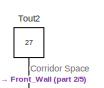
[diagram: root canvas - part 1/5, top center region]
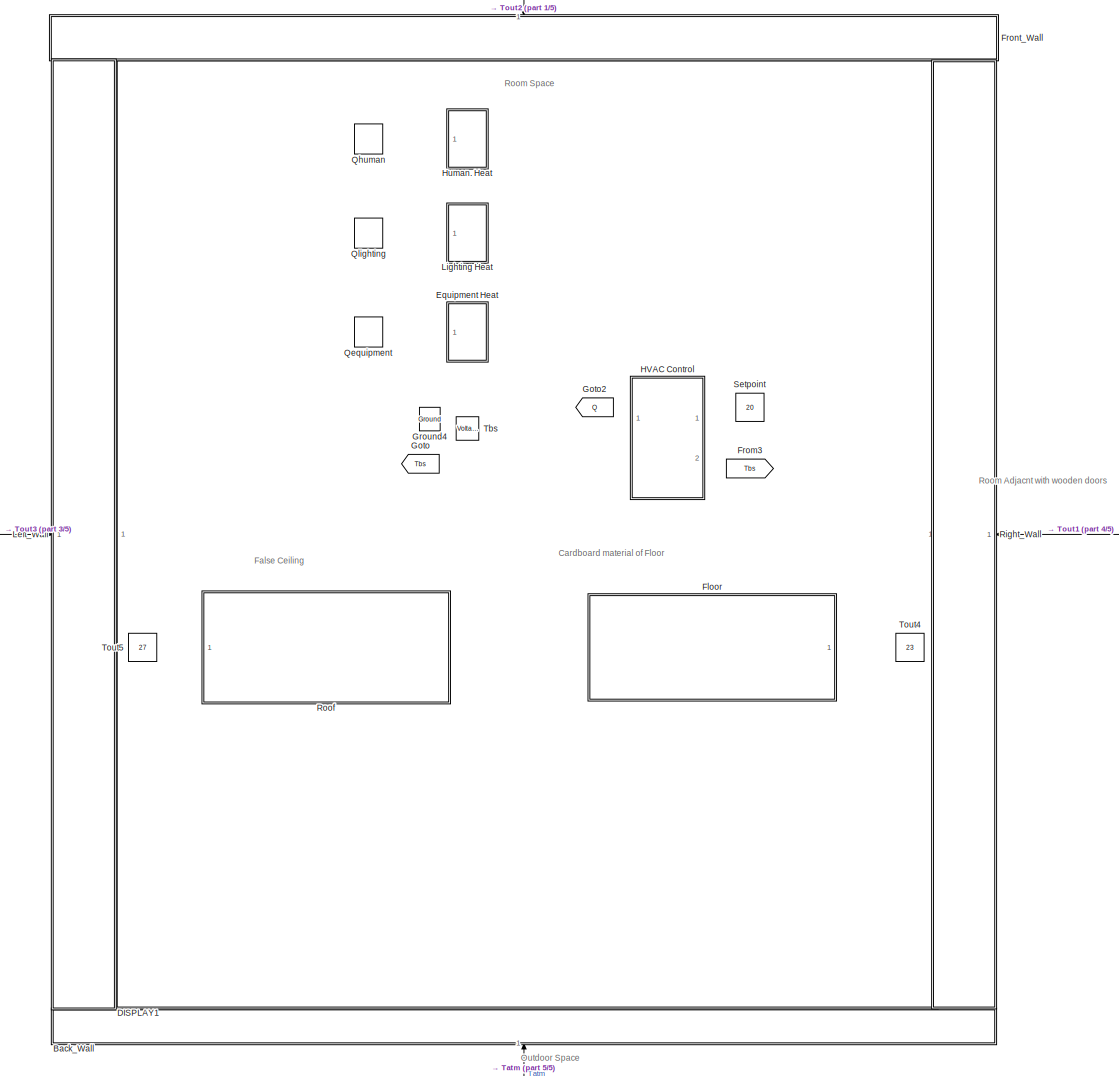
[diagram: root canvas - part 2/5, center side, full height]
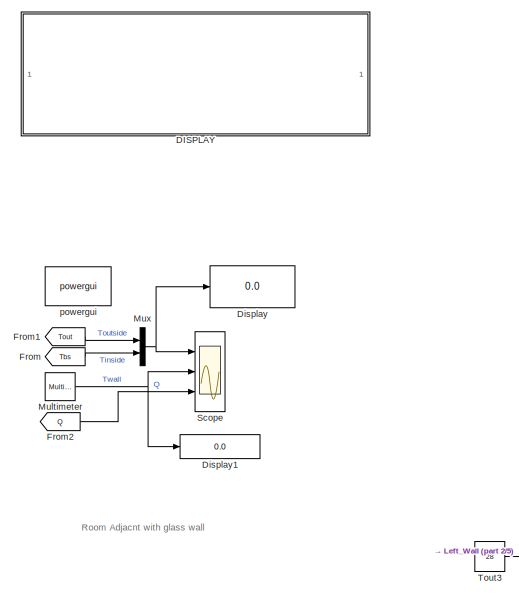
[diagram: root canvas - part 3/5, top left region]
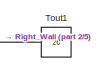
[diagram: root canvas - part 4/5, middle right region]
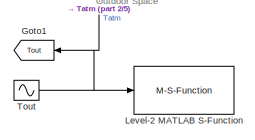
[diagram: root canvas - part 5/5, bottom center region]
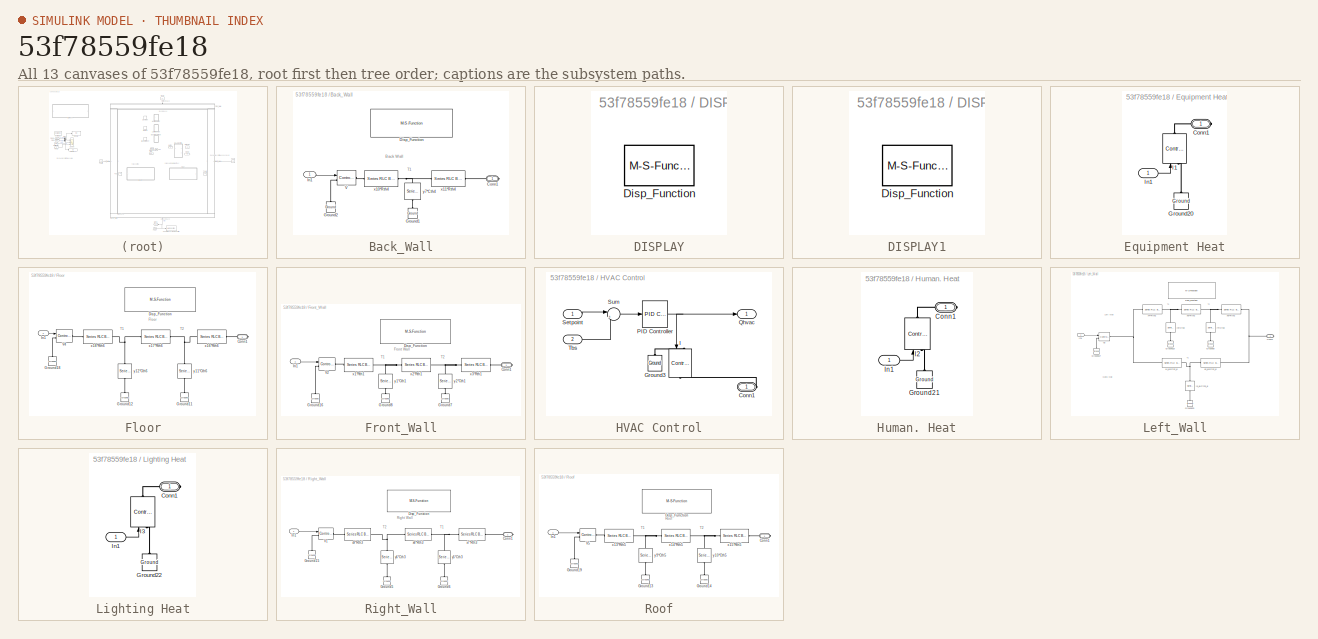
[diagram: thumbnail index - all 13 canvases of the model, root first then tree order]
MODEL slx_53f78559fe18
KIND model
CONFIG AbsTol = auto
CONFIG EnableMultiTasking = on
CONFIG FixedStep = Ts
CONFIG InitFcn = Ts=1.7e-2;\nDuration=36000;\n%% Coefficients of Rs and Cs\n\n%% Front Wall\nl1 = 7.37;\nb1 = 2.63;\ny1 = 0.5;\nx1 = 0.33;\ny2 = 0.5;\nx2 = 0.33;\nx3 = 0.33;\n\n%% Left Wall\nl2 = 10.11;\nb2 = 2.63;\ny3 = 0.5;\nx4 = 0.33;\ny4 = 0.5;\nx5 = 0.33;\nx6 = 0.33;\n\n%% Left Wall Glass\nx4_g = 0.5;\nx5_g = 0.5;\ny3_g = 1;\n\n%% Right Wall\nl3 = 7.37;\nb3 = 2.63;\ny5 = 0.5;\nx7 = 0.33;\ny6 = 0.5;\nx8 = 0.33;\nx9 = 0.33;\n\n%% Back Wall\nl4 = 1...<+3448ch>
CONFIG MaxStep = auto
CONFIG MinStep = auto
CONFIG RelTol = 1e-3
CONFIG SampleTimeConstraint = Unconstrained
CONFIG Solver = ode3
CONFIG SolverName = ode3
CONFIG StartTime = 0.0
CONFIG StopTime = inf
BLOCK [SubSystem] Back_Wall
  Ports = [1, 0, 0, 0, 0, 0, 1]
  RequestExecContextInheritance = off
BLOCK [PMIOPort] Back_Wall/Conn1
  Side = Right
BLOCK [M-S-Function] Back_Wall/Disp_Function
  FunctionName = fn_Display_wall
  Ports = []
BLOCK [Reference] Back_Wall/Ground1  REF=powerlib/Elements/Ground
  Ports = [0, 0, 0, 0, 0, 1]
  SourceBlock = powerlib/Elements/Ground
  SourceProductBaseCode = PS
  SourceProductName = Simscape Power Systems
  SourceType = Ground
BLOCK [Reference] Back_Wall/Ground2  REF=powerlib/Elements/Ground
  Ports = [0, 0, 0, 0, 0, 1]
  SourceBlock = powerlib/Elements/Ground
  SourceProductBaseCode = PS
  SourceProductName = Simscape Power Systems
  SourceType = Ground
BLOCK [Inport] Back_Wall/In1
  IconDisplay = Port number
BLOCK [Reference] Back_Wall/V  REF=powerlib/Electrical
Sources/Controlled Voltage Source
  Ports = [1, 0, 0, 0, 0, 1, 1]
  SourceBlock = powerlib/Electrical\nSources/Controlled Voltage Source
  SourceProductBaseCode = PS
  SourceProductName = Simscape Power Systems
  SourceType = Controlled Voltage Source
BLOCK [Reference] Back_Wall/x10*Rth4  REF=powerlib/Elements/Series RLC Branch
  Ports = [0, 0, 0, 0, 0, 1, 1]
  SourceBlock = powerlib/Elements/Series RLC Branch
  SourceProductBaseCode = PS
  SourceProductName = Simscape Power Systems
  SourceType = Series RLC Branch
BLOCK [Reference] Back_Wall/x11*Rth4  REF=powerlib/Elements/Series RLC Branch
  Ports = [0, 0, 0, 0, 0, 1, 1]
  SourceBlock = powerlib/Elements/Series RLC Branch
  SourceProductBaseCode = PS
  SourceProductName = Simscape Power Systems
  SourceType = Series RLC Branch
BLOCK [Reference] Back_Wall/y7*Cth4  REF=powerlib/Elements/Series RLC Branch
  Ports = [0, 0, 0, 0, 0, 1, 1]
  SourceBlock = powerlib/Elements/Series RLC Branch
  SourceProductBaseCode = PS
  SourceProductName = Simscape Power Systems
  SourceType = Series RLC Branch
BLOCK [SubSystem] DISPLAY
  AttributesFormatString = 39.76
  Ports = []
  RequestExecContextInheritance = off
BLOCK [M-S-Function] DISPLAY/Disp_Function
  FunctionName = fn_Display
  Ports = []
BLOCK [SubSystem] DISPLAY1
  AttributesFormatString = 35.01
  Ports = []
  RequestExecContextInheritance = off
BLOCK [M-S-Function] DISPLAY1/Disp_Function
  FunctionName = fn_Display_Room
  Ports = []
BLOCK [Display] Display
  Decimation = 1
  Ports = [1]
BLOCK [Display] Display1
  Decimation = 1
  Ports = [1]
BLOCK [SubSystem] Equipment Heat
  Ports = [1, 0, 0, 0, 0, 0, 1]
  RequestExecContextInheritance = off
  ShowPortLabels = none
BLOCK [PMIOPort] Equipment Heat/Conn1
  Side = Right
BLOCK [Reference] Equipment Heat/Ground20  REF=powerlib/Elements/Ground
  Ports = [0, 0, 0, 0, 0, 1]
  SourceBlock = powerlib/Elements/Ground
  SourceProductBaseCode = PS
  SourceProductName = Simscape Power Systems
  SourceType = Ground
BLOCK [Reference] Equipment Heat/I1  REF=powerlib/Electrical
Sources/Controlled Current Source
  Ports = [1, 0, 0, 0, 0, 1, 1]
  SourceBlock = powerlib/Electrical\nSources/Controlled Current Source
  SourceProductBaseCode = PS
  SourceProductName = Simscape Power Systems
  SourceType = Controlled Current Source
BLOCK [Inport] Equipment Heat/In1
  IconDisplay = Port number
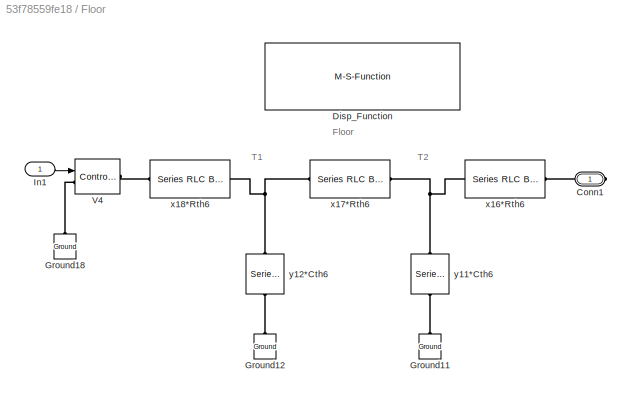
BLOCK [SubSystem] Floor
  Ports = [1, 0, 0, 0, 0, 0, 1]
  RequestExecContextInheritance = off
BLOCK [PMIOPort] Floor/Conn1
  Side = Right
BLOCK [M-S-Function] Floor/Disp_Function
  FunctionName = fn_Display_wall
  Ports = []
BLOCK [Reference] Floor/Ground11  REF=powerlib/Elements/Ground
  Ports = [0, 0, 0, 0, 0, 1]
  SourceBlock = powerlib/Elements/Ground
  SourceProductBaseCode = PS
  SourceProductName = Simscape Power Systems
  SourceType = Ground
BLOCK [Reference] Floor/Ground12  REF=powerlib/Elements/Ground
  Ports = [0, 0, 0, 0, 0, 1]
  SourceBlock = powerlib/Elements/Ground
  SourceProductBaseCode = PS
  SourceProductName = Simscape Power Systems
  SourceType = Ground
BLOCK [Reference] Floor/Ground18  REF=powerlib/Elements/Ground
  Ports = [0, 0, 0, 0, 0, 1]
  SourceBlock = powerlib/Elements/Ground
  SourceProductBaseCode = PS
  SourceProductName = Simscape Power Systems
  SourceType = Ground
BLOCK [Inport] Floor/In1
  IconDisplay = Port number
BLOCK [Reference] Floor/V4  REF=powerlib/Electrical
Sources/Controlled Voltage Source
  Ports = [1, 0, 0, 0, 0, 1, 1]
  SourceBlock = powerlib/Electrical\nSources/Controlled Voltage Source
  SourceProductBaseCode = PS
  SourceProductName = Simscape Power Systems
  SourceType = Controlled Voltage Source
BLOCK [Reference] Floor/x16*Rth6  REF=powerlib/Elements/Series RLC Branch
  Ports = [0, 0, 0, 0, 0, 1, 1]
  SourceBlock = powerlib/Elements/Series RLC Branch
  SourceProductBaseCode = PS
  SourceProductName = Simscape Power Systems
  SourceType = Series RLC Branch
BLOCK [Reference] Floor/x17*Rth6  REF=powerlib/Elements/Series RLC Branch
  Ports = [0, 0, 0, 0, 0, 1, 1]
  SourceBlock = powerlib/Elements/Series RLC Branch
  SourceProductBaseCode = PS
  SourceProductName = Simscape Power Systems
  SourceType = Series RLC Branch
BLOCK [Reference] Floor/x18*Rth6  REF=powerlib/Elements/Series RLC Branch
  Ports = [0, 0, 0, 0, 0, 1, 1]
  SourceBlock = powerlib/Elements/Series RLC Branch
  SourceProductBaseCode = PS
  SourceProductName = Simscape Power Systems
  SourceType = Series RLC Branch
BLOCK [Reference] Floor/y11*Cth6  REF=powerlib/Elements/Series RLC Branch
  Ports = [0, 0, 0, 0, 0, 1, 1]
  SourceBlock = powerlib/Elements/Series RLC Branch
  SourceProductBaseCode = PS
  SourceProductName = Simscape Power Systems
  SourceType = Series RLC Branch
BLOCK [Reference] Floor/y12*Cth6  REF=powerlib/Elements/Series RLC Branch
  Ports = [0, 0, 0, 0, 0, 1, 1]
  SourceBlock = powerlib/Elements/Series RLC Branch
  SourceProductBaseCode = PS
  SourceProductName = Simscape Power Systems
  SourceType = Series RLC Branch
BLOCK [From] From
  GotoTag = Tbs
BLOCK [From] From1
  GotoTag = Tout
BLOCK [From] From2
  GotoTag = Q
BLOCK [From] From3
  GotoTag = Tbs
BLOCK [SubSystem] Front_Wall
  Ports = [1, 0, 0, 0, 0, 0, 1]
  RequestExecContextInheritance = off
BLOCK [PMIOPort] Front_Wall/Conn1
  Side = Right
BLOCK [M-S-Function] Front_Wall/Disp_Function
  FunctionName = fn_Display_wall
  Ports = []
BLOCK [Reference] Front_Wall/Ground16  REF=powerlib/Elements/Ground
  Ports = [0, 0, 0, 0, 0, 1]
  SourceBlock = powerlib/Elements/Ground
  SourceProductBaseCode = PS
  SourceProductName = Simscape Power Systems
  SourceType = Ground
BLOCK [Reference] Front_Wall/Ground7  REF=powerlib/Elements/Ground
  Ports = [0, 0, 0, 0, 0, 1]
  SourceBlock = powerlib/Elements/Ground
  SourceProductBaseCode = PS
  SourceProductName = Simscape Power Systems
  SourceType = Ground
BLOCK [Reference] Front_Wall/Ground8  REF=powerlib/Elements/Ground
  Ports = [0, 0, 0, 0, 0, 1]
  SourceBlock = powerlib/Elements/Ground
  SourceProductBaseCode = PS
  SourceProductName = Simscape Power Systems
  SourceType = Ground
BLOCK [Inport] Front_Wall/In1
  IconDisplay = Port number
BLOCK [Reference] Front_Wall/V2  REF=powerlib/Electrical
Sources/Controlled Voltage Source
  Ports = [1, 0, 0, 0, 0, 1, 1]
  SourceBlock = powerlib/Electrical\nSources/Controlled Voltage Source
  SourceProductBaseCode = PS
  SourceProductName = Simscape Power Systems
  SourceType = Controlled Voltage Source
BLOCK [Reference] Front_Wall/x1*Rth1  REF=powerlib/Elements/Series RLC Branch
  Ports = [0, 0, 0, 0, 0, 1, 1]
  SourceBlock = powerlib/Elements/Series RLC Branch
  SourceProductBaseCode = PS
  SourceProductName = Simscape Power Systems
  SourceType = Series RLC Branch
BLOCK [Reference] Front_Wall/x2*Rth1  REF=powerlib/Elements/Series RLC Branch
  Ports = [0, 0, 0, 0, 0, 1, 1]
  SourceBlock = powerlib/Elements/Series RLC Branch
  SourceProductBaseCode = PS
  SourceProductName = Simscape Power Systems
  SourceType = Series RLC Branch
BLOCK [Reference] Front_Wall/x3*Rth1  REF=powerlib/Elements/Series RLC Branch
  Ports = [0, 0, 0, 0, 0, 1, 1]
  SourceBlock = powerlib/Elements/Series RLC Branch
  SourceProductBaseCode = PS
  SourceProductName = Simscape Power Systems
  SourceType = Series RLC Branch
BLOCK [Reference] Front_Wall/y1*Cth1  REF=powerlib/Elements/Series RLC Branch
  Ports = [0, 0, 0, 0, 0, 1, 1]
  SourceBlock = powerlib/Elements/Series RLC Branch
  SourceProductBaseCode = PS
  SourceProductName = Simscape Power Systems
  SourceType = Series RLC Branch
BLOCK [Reference] Front_Wall/y2*Cth1  REF=powerlib/Elements/Series RLC Branch
  Ports = [0, 0, 0, 0, 0, 1, 1]
  SourceBlock = powerlib/Elements/Series RLC Branch
  SourceProductBaseCode = PS
  SourceProductName = Simscape Power Systems
  SourceType = Series RLC Branch
BLOCK [Goto] Goto
  GotoTag = Tbs
BLOCK [Goto] Goto1
  GotoTag = Tout
BLOCK [Goto] Goto2
  GotoTag = Q
BLOCK [Reference] Ground4  REF=powerlib/Elements/Ground
  Ports = [0, 0, 0, 0, 0, 1]
  SourceBlock = powerlib/Elements/Ground
  SourceProductBaseCode = PS
  SourceProductName = Simscape Power Systems
  SourceType = Ground
BLOCK [SubSystem] HVAC Control
  Ports = [2, 1, 0, 0, 0, 0, 1]
  RequestExecContextInheritance = off
BLOCK [PMIOPort] HVAC Control/Conn1
  Side = Right
BLOCK [Reference] HVAC Control/Ground3  REF=powerlib/Elements/Ground
  Ports = [0, 0, 0, 0, 0, 1]
  SourceBlock = powerlib/Elements/Ground
  SourceProductBaseCode = PS
  SourceProductName = Simscape Power Systems
  SourceType = Ground
BLOCK [Reference] HVAC Control/I  REF=powerlib/Electrical
Sources/Controlled Current Source
  Ports = [1, 0, 0, 0, 0, 1, 1]
  SourceBlock = powerlib/Electrical\nSources/Controlled Current Source
  SourceProductBaseCode = PS
  SourceProductName = Simscape Power Systems
  SourceType = Controlled Current Source
BLOCK [Reference] HVAC Control/PID Controller  REF=simulink/Continuous/PID Controller
  Ports = [1, 1]
  SourceBlock = simulink/Continuous/PID Controller
  SourceProductBaseCode = SL
  SourceProductName = Simulink
  SourceType = PID 1dof
BLOCK [Outport] HVAC Control/Qhvac
  IconDisplay = Port number
BLOCK [Inport] HVAC Control/Setpoint
  IconDisplay = Port number
BLOCK [Sum] HVAC Control/Sum
  IconShape = round
  InputSameDT = off
  Inputs = |+-
  OutDataTypeStr = Inherit: Inherit via internal rule
  Ports = [2, 1]
  SaturateOnIntegerOverflow = off
BLOCK [Inport] HVAC Control/Tbs
  IconDisplay = Port number
  Port = 2
BLOCK [SubSystem] Human. Heat
  Ports = [1, 0, 0, 0, 0, 0, 1]
  RequestExecContextInheritance = off
  ShowPortLabels = none
BLOCK [PMIOPort] Human. Heat/Conn1
  Side = Right
BLOCK [Reference] Human. Heat/Ground21  REF=powerlib/Elements/Ground
  Ports = [0, 0, 0, 0, 0, 1]
  SourceBlock = powerlib/Elements/Ground
  SourceProductBaseCode = PS
  SourceProductName = Simscape Power Systems
  SourceType = Ground
BLOCK [Reference] Human. Heat/I2  REF=powerlib/Electrical
Sources/Controlled Current Source
  Ports = [1, 0, 0, 0, 0, 1, 1]
  SourceBlock = powerlib/Electrical\nSources/Controlled Current Source
  SourceProductBaseCode = PS
  SourceProductName = Simscape Power Systems
  SourceType = Controlled Current Source
BLOCK [Inport] Human. Heat/In1
  IconDisplay = Port number
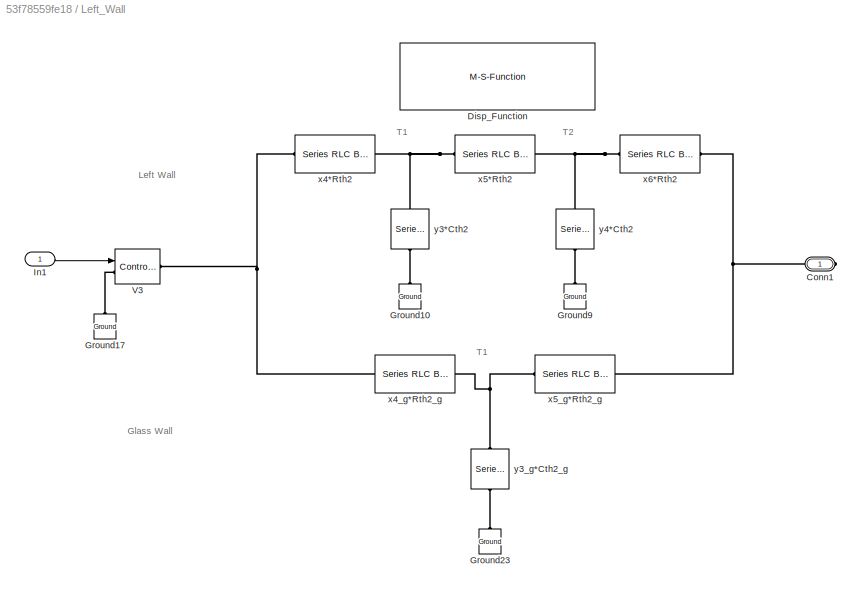
BLOCK [SubSystem] Left_Wall
  Ports = [1, 0, 0, 0, 0, 0, 1]
  RequestExecContextInheritance = off
BLOCK [PMIOPort] Left_Wall/Conn1
  Side = Right
BLOCK [M-S-Function] Left_Wall/Disp_Function
  FunctionName = fn_Display_wall
  Ports = []
BLOCK [Reference] Left_Wall/Ground10  REF=powerlib/Elements/Ground
  Ports = [0, 0, 0, 0, 0, 1]
  SourceBlock = powerlib/Elements/Ground
  SourceProductBaseCode = PS
  SourceProductName = Simscape Power Systems
  SourceType = Ground
BLOCK [Reference] Left_Wall/Ground17  REF=powerlib/Elements/Ground
  Ports = [0, 0, 0, 0, 0, 1]
  SourceBlock = powerlib/Elements/Ground
  SourceProductBaseCode = PS
  SourceProductName = Simscape Power Systems
  SourceType = Ground
BLOCK [Reference] Left_Wall/Ground23  REF=powerlib/Elements/Ground
  Ports = [0, 0, 0, 0, 0, 1]
  SourceBlock = powerlib/Elements/Ground
  SourceProductBaseCode = PS
  SourceProductName = Simscape Power Systems
  SourceType = Ground
BLOCK [Reference] Left_Wall/Ground9  REF=powerlib/Elements/Ground
  Ports = [0, 0, 0, 0, 0, 1]
  SourceBlock = powerlib/Elements/Ground
  SourceProductBaseCode = PS
  SourceProductName = Simscape Power Systems
  SourceType = Ground
BLOCK [Inport] Left_Wall/In1
  IconDisplay = Port number
BLOCK [Reference] Left_Wall/V3  REF=powerlib/Electrical
Sources/Controlled Voltage Source
  Ports = [1, 0, 0, 0, 0, 1, 1]
  SourceBlock = powerlib/Electrical\nSources/Controlled Voltage Source
  SourceProductBaseCode = PS
  SourceProductName = Simscape Power Systems
  SourceType = Controlled Voltage Source
BLOCK [Reference] Left_Wall/x4*Rth2  REF=powerlib/Elements/Series RLC Branch
  Ports = [0, 0, 0, 0, 0, 1, 1]
  SourceBlock = powerlib/Elements/Series RLC Branch
  SourceProductBaseCode = PS
  SourceProductName = Simscape Power Systems
  SourceType = Series RLC Branch
BLOCK [Reference] Left_Wall/x4_g*Rth2_g  REF=powerlib/Elements/Series RLC Branch
  Ports = [0, 0, 0, 0, 0, 1, 1]
  SourceBlock = powerlib/Elements/Series RLC Branch
  SourceProductBaseCode = PS
  SourceProductName = Simscape Power Systems
  SourceType = Series RLC Branch
BLOCK [Reference] Left_Wall/x5*Rth2  REF=powerlib/Elements/Series RLC Branch
  Ports = [0, 0, 0, 0, 0, 1, 1]
  SourceBlock = powerlib/Elements/Series RLC Branch
  SourceProductBaseCode = PS
  SourceProductName = Simscape Power Systems
  SourceType = Series RLC Branch
BLOCK [Reference] Left_Wall/x5_g*Rth2_g  REF=powerlib/Elements/Series RLC Branch
  Ports = [0, 0, 0, 0, 0, 1, 1]
  SourceBlock = powerlib/Elements/Series RLC Branch
  SourceProductBaseCode = PS
  SourceProductName = Simscape Power Systems
  SourceType = Series RLC Branch
BLOCK [Reference] Left_Wall/x6*Rth2  REF=powerlib/Elements/Series RLC Branch
  Ports = [0, 0, 0, 0, 0, 1, 1]
  SourceBlock = powerlib/Elements/Series RLC Branch
  SourceProductBaseCode = PS
  SourceProductName = Simscape Power Systems
  SourceType = Series RLC Branch
BLOCK [Reference] Left_Wall/y3*Cth2  REF=powerlib/Elements/Series RLC Branch
  Ports = [0, 0, 0, 0, 0, 1, 1]
  SourceBlock = powerlib/Elements/Series RLC Branch
  SourceProductBaseCode = PS
  SourceProductName = Simscape Power Systems
  SourceType = Series RLC Branch
BLOCK [Reference] Left_Wall/y3_g*Cth2_g  REF=powerlib/Elements/Series RLC Branch
  Ports = [0, 0, 0, 0, 0, 1, 1]
  SourceBlock = powerlib/Elements/Series RLC Branch
  SourceProductBaseCode = PS
  SourceProductName = Simscape Power Systems
  SourceType = Series RLC Branch
BLOCK [Reference] Left_Wall/y4*Cth2  REF=powerlib/Elements/Series RLC Branch
  Ports = [0, 0, 0, 0, 0, 1, 1]
  SourceBlock = powerlib/Elements/Series RLC Branch
  SourceProductBaseCode = PS
  SourceProductName = Simscape Power Systems
  SourceType = Series RLC Branch
BLOCK [M-S-Function] Level-2 MATLAB S-Function
  FunctionName = Display_Param
  Ports = [1]
BLOCK [SubSystem] Lighting Heat
  Ports = [1, 0, 0, 0, 0, 0, 1]
  RequestExecContextInheritance = off
  ShowPortLabels = none
BLOCK [PMIOPort] Lighting Heat/Conn1
  Side = Right
BLOCK [Reference] Lighting Heat/Ground22  REF=powerlib/Elements/Ground
  Ports = [0, 0, 0, 0, 0, 1]
  SourceBlock = powerlib/Elements/Ground
  SourceProductBaseCode = PS
  SourceProductName = Simscape Power Systems
  SourceType = Ground
BLOCK [Reference] Lighting Heat/I3  REF=powerlib/Electrical
Sources/Controlled Current Source
  Ports = [1, 0, 0, 0, 0, 1, 1]
  SourceBlock = powerlib/Electrical\nSources/Controlled Current Source
  SourceProductBaseCode = PS
  SourceProductName = Simscape Power Systems
  SourceType = Controlled Current Source
BLOCK [Inport] Lighting Heat/In1
  IconDisplay = Port number
BLOCK [Reference] Multimeter  REF=powerlib/Measurements/Multimeter
  Ports = [0, 1]
  SourceBlock = powerlib/Measurements/Multimeter
  SourceProductBaseCode = PS
  SourceProductName = Simscape Power Systems
  SourceType = MultimeterPSB
BLOCK [Mux] Mux
  DisplayOption = bar
  Inputs = 2
  Ports = [2, 1]
BLOCK [DiscretePulseGenerator] Qequipment
  Amplitude = 4000
  Period = 1e8
  Ports = [0, 1]
  PulseType = Time based
  PulseWidth = 50
BLOCK [DiscretePulseGenerator] Qhuman
  Amplitude = 1500
  Period = 1e8
  Ports = [0, 1]
  PulseType = Time based
  PulseWidth = 50
BLOCK [DiscretePulseGenerator] Qlighting
  Amplitude = 2000
  Period = 1e8
  Ports = [0, 1]
  PulseType = Time based
  PulseWidth = 80
BLOCK [SubSystem] Right_Wall
  Ports = [1, 0, 0, 0, 0, 0, 1]
  RequestExecContextInheritance = off
BLOCK [PMIOPort] Right_Wall/Conn1
  Side = Right
BLOCK [M-S-Function] Right_Wall/Disp_Function
  FunctionName = fn_Display_wall
  Ports = []
BLOCK [Reference] Right_Wall/Ground15  REF=powerlib/Elements/Ground
  Ports = [0, 0, 0, 0, 0, 1]
  SourceBlock = powerlib/Elements/Ground
  SourceProductBaseCode = PS
  SourceProductName = Simscape Power Systems
  SourceType = Ground
BLOCK [Reference] Right_Wall/Ground5  REF=powerlib/Elements/Ground
  Ports = [0, 0, 0, 0, 0, 1]
  SourceBlock = powerlib/Elements/Ground
  SourceProductBaseCode = PS
  SourceProductName = Simscape Power Systems
  SourceType = Ground
BLOCK [Reference] Right_Wall/Ground6  REF=powerlib/Elements/Ground
  Ports = [0, 0, 0, 0, 0, 1]
  SourceBlock = powerlib/Elements/Ground
  SourceProductBaseCode = PS
  SourceProductName = Simscape Power Systems
  SourceType = Ground
BLOCK [Inport] Right_Wall/In1
  IconDisplay = Port number
BLOCK [Reference] Right_Wall/V1  REF=powerlib/Electrical
Sources/Controlled Voltage Source
  Ports = [1, 0, 0, 0, 0, 1, 1]
  SourceBlock = powerlib/Electrical\nSources/Controlled Voltage Source
  SourceProductBaseCode = PS
  SourceProductName = Simscape Power Systems
  SourceType = Controlled Voltage Source
BLOCK [Reference] Right_Wall/x7*Rth3  REF=powerlib/Elements/Series RLC Branch
  Ports = [0, 0, 0, 0, 0, 1, 1]
  SourceBlock = powerlib/Elements/Series RLC Branch
  SourceProductBaseCode = PS
  SourceProductName = Simscape Power Systems
  SourceType = Series RLC Branch
BLOCK [Reference] Right_Wall/x8*Rth3  REF=powerlib/Elements/Series RLC Branch
  Ports = [0, 0, 0, 0, 0, 1, 1]
  SourceBlock = powerlib/Elements/Series RLC Branch
  SourceProductBaseCode = PS
  SourceProductName = Simscape Power Systems
  SourceType = Series RLC Branch
BLOCK [Reference] Right_Wall/x9*Rth3  REF=powerlib/Elements/Series RLC Branch
  Ports = [0, 0, 0, 0, 0, 1, 1]
  SourceBlock = powerlib/Elements/Series RLC Branch
  SourceProductBaseCode = PS
  SourceProductName = Simscape Power Systems
  SourceType = Series RLC Branch
BLOCK [Reference] Right_Wall/y5*Cth3  REF=powerlib/Elements/Series RLC Branch
  Ports = [0, 0, 0, 0, 0, 1, 1]
  SourceBlock = powerlib/Elements/Series RLC Branch
  SourceProductBaseCode = PS
  SourceProductName = Simscape Power Systems
  SourceType = Series RLC Branch
BLOCK [Reference] Right_Wall/y6*Cth3  REF=powerlib/Elements/Series RLC Branch
  Ports = [0, 0, 0, 0, 0, 1, 1]
  SourceBlock = powerlib/Elements/Series RLC Branch
  SourceProductBaseCode = PS
  SourceProductName = Simscape Power Systems
  SourceType = Series RLC Branch
BLOCK [SubSystem] Roof
  Ports = [1, 0, 0, 0, 0, 0, 1]
  RequestExecContextInheritance = off
BLOCK [PMIOPort] Roof/Conn1
  Side = Right
BLOCK [M-S-Function] Roof/Disp_Function
  FunctionName = fn_Display_wall
  Ports = []
BLOCK [Reference] Roof/Ground13  REF=powerlib/Elements/Ground
  Ports = [0, 0, 0, 0, 0, 1]
  SourceBlock = powerlib/Elements/Ground
  SourceProductBaseCode = PS
  SourceProductName = Simscape Power Systems
  SourceType = Ground
BLOCK [Reference] Roof/Ground14  REF=powerlib/Elements/Ground
  Ports = [0, 0, 0, 0, 0, 1]
  SourceBlock = powerlib/Elements/Ground
  SourceProductBaseCode = PS
  SourceProductName = Simscape Power Systems
  SourceType = Ground
BLOCK [Reference] Roof/Ground19  REF=powerlib/Elements/Ground
  Ports = [0, 0, 0, 0, 0, 1]
  SourceBlock = powerlib/Elements/Ground
  SourceProductBaseCode = PS
  SourceProductName = Simscape Power Systems
  SourceType = Ground
BLOCK [Inport] Roof/In1
  IconDisplay = Port number
BLOCK [Reference] Roof/V5  REF=powerlib/Electrical
Sources/Controlled Voltage Source
  Ports = [1, 0, 0, 0, 0, 1, 1]
  SourceBlock = powerlib/Electrical\nSources/Controlled Voltage Source
  SourceProductBaseCode = PS
  SourceProductName = Simscape Power Systems
  SourceType = Controlled Voltage Source
BLOCK [Reference] Roof/x13*Rth5  REF=powerlib/Elements/Series RLC Branch
  Ports = [0, 0, 0, 0, 0, 1, 1]
  SourceBlock = powerlib/Elements/Series RLC Branch
  SourceProductBaseCode = PS
  SourceProductName = Simscape Power Systems
  SourceType = Series RLC Branch
BLOCK [Reference] Roof/x14*Rth5  REF=powerlib/Elements/Series RLC Branch
  Ports = [0, 0, 0, 0, 0, 1, 1]
  SourceBlock = powerlib/Elements/Series RLC Branch
  SourceProductBaseCode = PS
  SourceProductName = Simscape Power Systems
  SourceType = Series RLC Branch
BLOCK [Reference] Roof/x15*Rth5  REF=powerlib/Elements/Series RLC Branch
  Ports = [0, 0, 0, 0, 0, 1, 1]
  SourceBlock = powerlib/Elements/Series RLC Branch
  SourceProductBaseCode = PS
  SourceProductName = Simscape Power Systems
  SourceType = Series RLC Branch
BLOCK [Reference] Roof/y10*Cth5  REF=powerlib/Elements/Series RLC Branch
  Ports = [0, 0, 0, 0, 0, 1, 1]
  SourceBlock = powerlib/Elements/Series RLC Branch
  SourceProductBaseCode = PS
  SourceProductName = Simscape Power Systems
  SourceType = Series RLC Branch
BLOCK [Reference] Roof/y9*Cth5  REF=powerlib/Elements/Series RLC Branch
  Ports = [0, 0, 0, 0, 0, 1, 1]
  SourceBlock = powerlib/Elements/Series RLC Branch
  SourceProductBaseCode = PS
  SourceProductName = Simscape Power Systems
  SourceType = Series RLC Branch
BLOCK [Scope] Scope
  Floating = off
  NumInputPorts = 3
  Ports = [3]
  ScopeSpecificationString = Simulink.scopes.TimeScopeBlockCfg('CurrentConfiguration', extmgr.ConfigurationSet(extmgr.Configuration('Core','General UI',true,'FigureColor',[1 1 1]),extmgr.Configuration('Core','Source UI',true),extmgr.Configuration('Sources','WiredSimulink',true,'DataLoggingSaveFormat','Array','DataLoggingDecimation','1','DataLoggingDecimateData',true),extmgr.Configuration('Visuals','Time Domain',true,'Serializ...<+5531ch>
BLOCK [Constant] Setpoint
  Value = 20
BLOCK [Reference] Tbs  REF=powerlib/Measurements/Voltage Measurement
  Ports = [0, 1, 0, 0, 0, 2]
  SourceBlock = powerlib/Measurements/Voltage Measurement
  SourceProductBaseCode = PS
  SourceProductName = Simscape Power Systems
  SourceType = Voltage Measurement
  UserDataPersistent = on
BLOCK [Sin] Tout
  Amplitude = 25
  Bias = 5
  Frequency = 2*pi/(12*3600)
  Ports = [0, 1]
  SampleTime = 0
BLOCK [Constant] Tout1
  Value = 26
BLOCK [Constant] Tout2
  Value = 27
BLOCK [Constant] Tout3
  Value = 28
BLOCK [Constant] Tout4
  Value = 23
BLOCK [Constant] Tout5
  Value = 27
BLOCK [Reference] powergui  REF=powerlib/powergui
  Ports = []
  Priority = 1
  SourceBlock = powerlib/powergui
  SourceProductBaseCode = PS
  SourceProductName = Simscape Power Systems
  SourceType = PSB option menu block
ANNOTATION (root): Room Space
ANNOTATION (root): Cardboard material of Floor
ANNOTATION (root): Corridor Space
ANNOTATION (root): False Ceiling
ANNOTATION (root): Outdoor Space
ANNOTATION (root): Room Adjacnt with glass wall
ANNOTATION (root): Room Adjacnt with wooden doors
ANNOTATION Back_Wall: Back Wall
ANNOTATION Back_Wall: T1
ANNOTATION Floor: Floor
ANNOTATION Floor: T1
ANNOTATION Floor: T2
ANNOTATION Front_Wall: Front Wall
ANNOTATION Front_Wall: T1
ANNOTATION Front_Wall: T2
ANNOTATION Left_Wall: Glass Wall
ANNOTATION Left_Wall: Left Wall
ANNOTATION Left_Wall: T1
ANNOTATION Left_Wall: T2
ANNOTATION Right_Wall: Right Wall
ANNOTATION Right_Wall: T1
ANNOTATION Right_Wall: T2
ANNOTATION Roof: Roof
ANNOTATION Roof: T1
ANNOTATION Roof: T2
LINE Back_Wall/In1:1 -> Back_Wall/V:1
LINE Equipment Heat/In1:1 -> Equipment Heat/I1:1
LINE Floor/In1:1 -> Floor/V4:1
LINE From1:1 -> Mux:1
LINE From2:1 -> Scope:3
LINE From3:1 -> HVAC Control:2
LINE From:1 -> Mux:2
LINE Front_Wall/In1:1 -> Front_Wall/V2:1
NET HVAC Control/PID Controller:1 -> HVAC Control/I:1, HVAC Control/Qhvac:1
LINE HVAC Control/Setpoint:1 -> HVAC Control/Sum:1
LINE HVAC Control/Sum:1 -> HVAC Control/PID Controller:1
LINE HVAC Control/Tbs:1 -> HVAC Control/Sum:2
LINE HVAC Control:1 -> Goto2:1
LINE Human. Heat/In1:1 -> Human. Heat/I2:1
LINE Left_Wall/In1:1 -> Left_Wall/V3:1
LINE Lighting Heat/In1:1 -> Lighting Heat/I3:1
NET Multimeter:1 -> Display1:1, Scope:2
NET Mux:1 -> Display:1, Scope:1
LINE Qequipment:1 -> Equipment Heat:1
LINE Qhuman:1 -> Human. Heat:1
LINE Qlighting:1 -> Lighting Heat:1
LINE Right_Wall/In1:1 -> Right_Wall/V1:1
LINE Roof/In1:1 -> Roof/V5:1
LINE Setpoint:1 -> HVAC Control:1
LINE Tbs:1 -> Goto:1
LINE Tout1:1 -> Right_Wall:1
LINE Tout2:1 -> Front_Wall:1
LINE Tout3:1 -> Left_Wall:1
LINE Tout4:1 -> Floor:1
LINE Tout5:1 -> Roof:1
NET Tout:1 -> Back_Wall:1, Goto1:1, Level-2 MATLAB S-Function:1
PLINE Back_Wall/Conn1:RConn1 -- Back_Wall/x11*Rth4:RConn1
PLINE Back_Wall/Ground1:LConn1 -- Back_Wall/y7*Cth4:RConn1
PLINE Back_Wall/Ground2:LConn1 -- Back_Wall/V:LConn1
PLINE Back_Wall/V:RConn1 -- Back_Wall/x10*Rth4:LConn1
PNET net1: Back_Wall/x10*Rth4:RConn1 -- Back_Wall/x11*Rth4:LConn1 -- Back_Wall/y7*Cth4:LConn1
PNET net2: Back_Wall:RConn1 -- Equipment Heat:RConn1 -- Floor:RConn1 -- Front_Wall:RConn1 -- HVAC Control:RConn1 -- Human. Heat:RConn1 -- Left_Wall:RConn1 -- Lighting Heat:RConn1 -- Right_Wall:RConn1 -- Roof:RConn1 -- Tbs:LConn1
PLINE Equipment Heat/Conn1:RConn1 -- Equipment Heat/I1:RConn1
PLINE Equipment Heat/Ground20:LConn1 -- Equipment Heat/I1:LConn1
PLINE Floor/Conn1:RConn1 -- Floor/x16*Rth6:RConn1
PLINE Floor/Ground11:LConn1 -- Floor/y11*Cth6:RConn1
PLINE Floor/Ground12:LConn1 -- Floor/y12*Cth6:RConn1
PLINE Floor/Ground18:LConn1 -- Floor/V4:LConn1
PLINE Floor/V4:RConn1 -- Floor/x18*Rth6:LConn1
PNET net3: Floor/x16*Rth6:LConn1 -- Floor/x17*Rth6:RConn1 -- Floor/y11*Cth6:LConn1
PNET net4: Floor/x17*Rth6:LConn1 -- Floor/x18*Rth6:RConn1 -- Floor/y12*Cth6:LConn1
PLINE Front_Wall/Conn1:RConn1 -- Front_Wall/x3*Rth1:RConn1
PLINE Front_Wall/Ground16:LConn1 -- Front_Wall/V2:LConn1
PLINE Front_Wall/Ground7:LConn1 -- Front_Wall/y2*Cth1:RConn1
PLINE Front_Wall/Ground8:LConn1 -- Front_Wall/y1*Cth1:RConn1
PLINE Front_Wall/V2:RConn1 -- Front_Wall/x1*Rth1:LConn1
PNET net5: Front_Wall/x1*Rth1:RConn1 -- Front_Wall/x2*Rth1:LConn1 -- Front_Wall/y1*Cth1:LConn1
PNET net6: Front_Wall/x2*Rth1:RConn1 -- Front_Wall/x3*Rth1:LConn1 -- Front_Wall/y2*Cth1:LConn1
PLINE Ground4:LConn1 -- Tbs:LConn2
PLINE HVAC Control/Conn1:RConn1 -- HVAC Control/I:RConn1
PLINE HVAC Control/Ground3:LConn1 -- HVAC Control/I:LConn1
PLINE Human. Heat/Conn1:RConn1 -- Human. Heat/I2:RConn1
PLINE Human. Heat/Ground21:LConn1 -- Human. Heat/I2:LConn1
PNET net7: Left_Wall/Conn1:RConn1 -- Left_Wall/x5_g*Rth2_g:RConn1 -- Left_Wall/x6*Rth2:RConn1
PLINE Left_Wall/Ground10:LConn1 -- Left_Wall/y3*Cth2:RConn1
PLINE Left_Wall/Ground17:LConn1 -- Left_Wall/V3:LConn1
PLINE Left_Wall/Ground23:LConn1 -- Left_Wall/y3_g*Cth2_g:RConn1
PLINE Left_Wall/Ground9:LConn1 -- Left_Wall/y4*Cth2:RConn1
PNET net8: Left_Wall/V3:RConn1 -- Left_Wall/x4*Rth2:LConn1 -- Left_Wall/x4_g*Rth2_g:LConn1
PNET net9: Left_Wall/x4*Rth2:RConn1 -- Left_Wall/x5*Rth2:LConn1 -- Left_Wall/y3*Cth2:LConn1
PNET net10: Left_Wall/x4_g*Rth2_g:RConn1 -- Left_Wall/x5_g*Rth2_g:LConn1 -- Left_Wall/y3_g*Cth2_g:LConn1
PNET net11: Left_Wall/x5*Rth2:RConn1 -- Left_Wall/x6*Rth2:LConn1 -- Left_Wall/y4*Cth2:LConn1
PLINE Lighting Heat/Conn1:RConn1 -- Lighting Heat/I3:RConn1
PLINE Lighting Heat/Ground22:LConn1 -- Lighting Heat/I3:LConn1
PLINE Right_Wall/Conn1:RConn1 -- Right_Wall/x7*Rth3:RConn1
PLINE Right_Wall/Ground15:LConn1 -- Right_Wall/V1:LConn1
PLINE Right_Wall/Ground5:LConn1 -- Right_Wall/y6*Cth3:RConn1
PLINE Right_Wall/Ground6:LConn1 -- Right_Wall/y5*Cth3:RConn1
PLINE Right_Wall/V1:RConn1 -- Right_Wall/x9*Rth3:LConn1
PNET net12: Right_Wall/x7*Rth3:LConn1 -- Right_Wall/x8*Rth3:RConn1 -- Right_Wall/y5*Cth3:LConn1
PNET net13: Right_Wall/x8*Rth3:LConn1 -- Right_Wall/x9*Rth3:RConn1 -- Right_Wall/y6*Cth3:LConn1
PLINE Roof/Conn1:RConn1 -- Roof/x15*Rth5:RConn1
PLINE Roof/Ground13:LConn1 -- Roof/y9*Cth5:RConn1
PLINE Roof/Ground14:LConn1 -- Roof/y10*Cth5:RConn1
PLINE Roof/Ground19:LConn1 -- Roof/V5:LConn1
PLINE Roof/V5:RConn1 -- Roof/x13*Rth5:LConn1
PNET net14: Roof/x13*Rth5:RConn1 -- Roof/x14*Rth5:LConn1 -- Roof/y9*Cth5:LConn1
PNET net15: Roof/x14*Rth5:RConn1 -- Roof/x15*Rth5:LConn1 -- Roof/y10*Cth5:LConn1
note: NET lines group one-source signal fan-out (src -> all destinations, sorted); 1:1 wires keep LINE; PNET lines group multi-terminal physical nets as a canonical sorted terminal list (undirected conserving connections); 2-terminal nets keep the pairwise PLINE form
